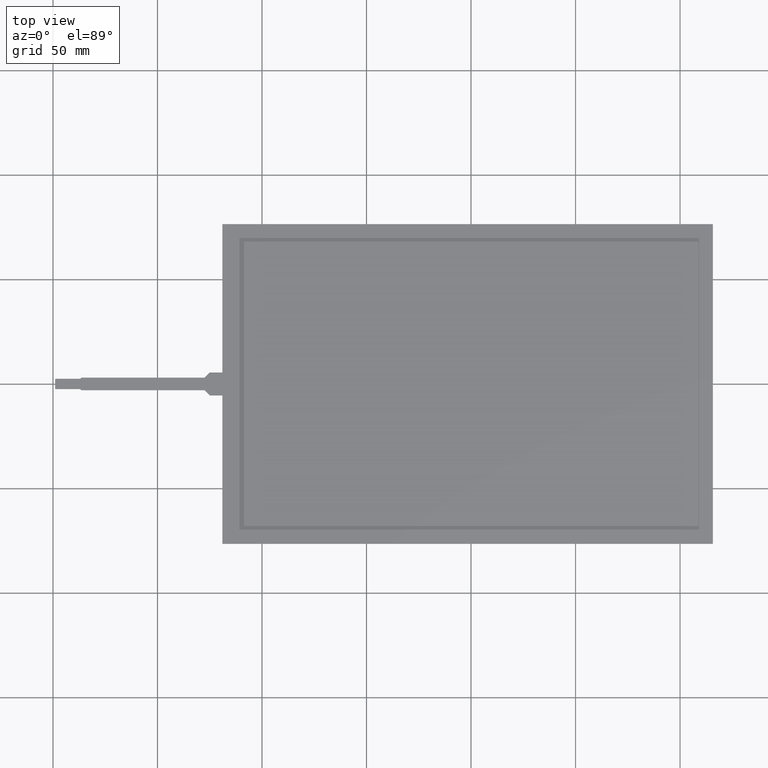
[diagram: clean part render]
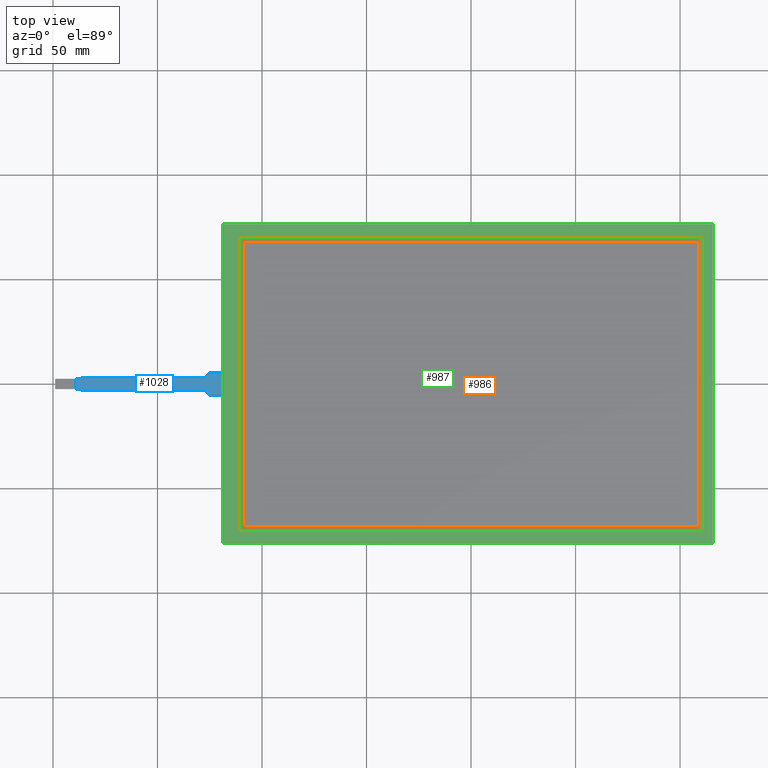
[diagram: same view with three faces highlighted in distinct colors, each labeled with its STEP entity id]
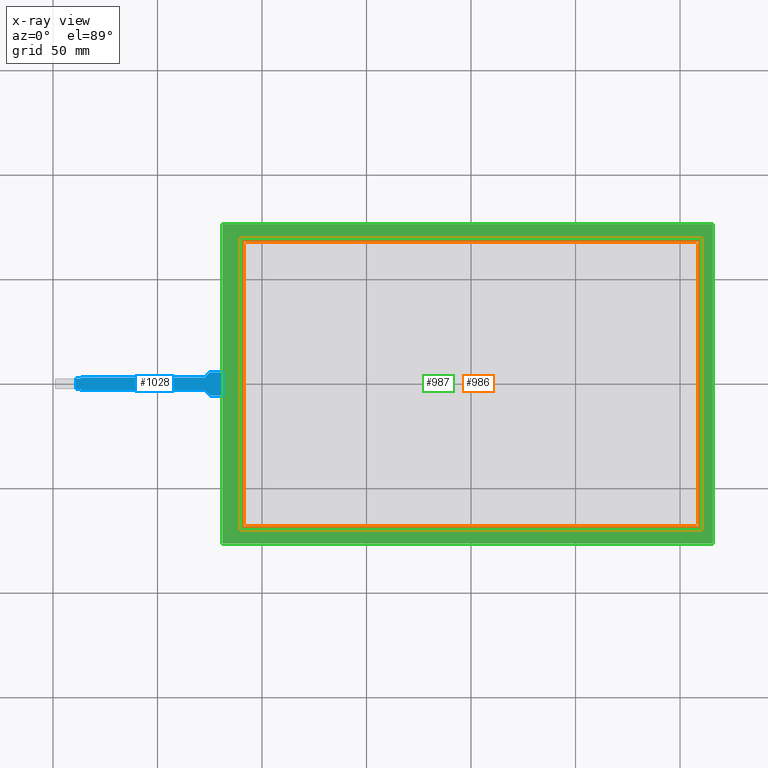
[diagram: x-ray of the same camera — body ghosted, the three highlighted faces saturated]
A machine part, top view with three faces highlighted in distinct colors.
The next image is the same camera in x-ray (body ghosted, the three faces saturated) — at least one of them is partly hidden behind the body in this view.
Their STEP definitions:

[orange] entity #986 — the highlighted planar face has unit normal (0, 0, -1).
#66=FACE_BOUND('',#129,.T.);
#76=FACE_OUTER_BOUND('',#128,.T.);
#128=EDGE_LOOP('',(#688,#689,#690,#691));
#129=EDGE_LOOP('',(#692,#693,#694,#695));
#176=LINE('',#1379,#302);
#180=LINE('',#1386,#306);
#183=LINE('',#1392,#309);
#185=LINE('',#1395,#311);
#188=LINE('',#1403,#314);
#192=LINE('',#1410,#318);
#195=LINE('',#1416,#321);
#197=LINE('',#1419,#323);
#302=VECTOR('',#1121,10.);
#306=VECTOR('',#1127,10.);
#309=VECTOR('',#1132,10.);
#311=VECTOR('',#1136,10.);
#314=VECTOR('',#1141,10.);
#318=VECTOR('',#1147,10.);
#321=VECTOR('',#1152,10.);
#323=VECTOR('',#1156,10.);
#428=VERTEX_POINT('',#1376);
#429=VERTEX_POINT('',#1378);
#431=VERTEX_POINT('',#1384);
#433=VERTEX_POINT('',#1390);
#436=VERTEX_POINT('',#1400);
#437=VERTEX_POINT('',#1402);
#439=VERTEX_POINT('',#1408);
#441=VERTEX_POINT('',#1414);
#520=EDGE_CURVE('',#428,#429,#176,.T.);
#524=EDGE_CURVE('',#431,#428,#180,.T.);
#527=EDGE_CURVE('',#433,#431,#183,.T.);
#529=EDGE_CURVE('',#429,#433,#185,.T.);
#532=EDGE_CURVE('',#436,#437,#188,.T.);
#536=EDGE_CURVE('',#439,#436,#192,.T.);
#539=EDGE_CURVE('',#441,#439,#195,.T.);
#541=EDGE_CURVE('',#437,#441,#197,.T.);
#688=ORIENTED_EDGE('',*,*,#541,.F.);
#689=ORIENTED_EDGE('',*,*,#532,.F.);
#690=ORIENTED_EDGE('',*,*,#536,.F.);
#691=ORIENTED_EDGE('',*,*,#539,.F.);
#692=ORIENTED_EDGE('',*,*,#529,.F.);
#693=ORIENTED_EDGE('',*,*,#520,.F.);
#694=ORIENTED_EDGE('',*,*,#524,.F.);
#695=ORIENTED_EDGE('',*,*,#527,.F.);
#940=PLANE('',#1059);
#986=ADVANCED_FACE('',(#76,#66),#940,.F.);
#1059=AXIS2_PLACEMENT_3D('',#1420,#1157,#1158);
#1121=DIRECTION('',(1.,0.,0.));
#1127=DIRECTION('',(0.,-1.,0.));
#1132=DIRECTION('',(-1.,0.,0.));
#1136=DIRECTION('',(0.,1.,0.));
#1141=DIRECTION('',(-2.53584131249144E-16,1.,0.));
#1147=DIRECTION('',(-1.,-1.20316773191564E-16,0.));
#1152=DIRECTION('',(0.,-1.,0.));
#1156=DIRECTION('',(1.,0.,0.));
#1157=DIRECTION('center_axis',(0.,0.,-1.));
#1158=DIRECTION('ref_axis',(-1.,0.,0.));
#1376=CARTESIAN_POINT('',(-108.73,-68.05,-0.1));
#1378=CARTESIAN_POINT('',(108.73,-68.05,-0.1));
#1379=CARTESIAN_POINT('',(108.73,-68.05,-0.1));
#1384=CARTESIAN_POINT('',(-108.73,68.05,-0.1));
#1386=CARTESIAN_POINT('',(-108.73,-68.05,-0.1));
#1390=CARTESIAN_POINT('',(108.73,68.05,-0.1));
#1392=CARTESIAN_POINT('',(-108.73,68.05,-0.1));
#1395=CARTESIAN_POINT('',(108.73,68.05,-0.1));
#1400=CARTESIAN_POINT('',(-110.73,-70.05,-0.1));
#1402=CARTESIAN_POINT('',(-110.73,70.05,-0.1));
#1403=CARTESIAN_POINT('',(-110.73,70.05,-0.1));
#1408=CARTESIAN_POINT('',(110.73,-70.05,-0.1));
#1410=CARTESIAN_POINT('',(-110.73,-70.05,-0.1));
#1414=CARTESIAN_POINT('',(110.73,70.05,-0.1));
#1416=CARTESIAN_POINT('',(110.73,-70.05,-0.1));
#1419=CARTESIAN_POINT('',(110.73,70.05,-0.1));
#1420=CARTESIAN_POINT('Origin',(0.,0.,-0.1));

[blue] entity #1028 — the highlighted planar face has unit normal (0, 0, 1).
#118=FACE_OUTER_BOUND('',#172,.T.);
#172=EDGE_LOOP('',(#908,#909,#910,#911,#912,#913,#914,#915,#916,#917,#918,
#919));
#264=LINE('',#1583,#390);
#267=LINE('',#1589,#393);
#271=LINE('',#1598,#397);
#275=LINE('',#1606,#401);
#278=LINE('',#1612,#404);
#281=LINE('',#1618,#407);
#284=LINE('',#1624,#410);
#287=LINE('',#1629,#413);
#289=LINE('',#1633,#415);
#292=LINE('',#1639,#418);
#295=LINE('',#1645,#421);
#298=LINE('',#1650,#424);
#390=VECTOR('',#1307,10.);
#393=VECTOR('',#1312,10.);
#397=VECTOR('',#1320,10.);
#401=VECTOR('',#1326,10.);
#404=VECTOR('',#1331,10.);
#407=VECTOR('',#1336,10.);
#410=VECTOR('',#1341,10.);
#413=VECTOR('',#1346,10.);
#415=VECTOR('',#1350,10.);
#418=VECTOR('',#1355,10.);
#421=VECTOR('',#1360,10.);
#424=VECTOR('',#1365,10.);
#495=VERTEX_POINT('',#1580);
#496=VERTEX_POINT('',#1582);
#498=VERTEX_POINT('',#1588);
#500=VERTEX_POINT('',#1596);
#501=VERTEX_POINT('',#1597);
#504=VERTEX_POINT('',#1605);
#506=VERTEX_POINT('',#1611);
#508=VERTEX_POINT('',#1617);
#510=VERTEX_POINT('',#1623);
#512=VERTEX_POINT('',#1632);
#514=VERTEX_POINT('',#1638);
#516=VERTEX_POINT('',#1644);
#620=EDGE_CURVE('',#496,#495,#264,.T.);
#623=EDGE_CURVE('',#498,#496,#267,.T.);
#627=EDGE_CURVE('',#500,#501,#271,.T.);
#631=EDGE_CURVE('',#501,#504,#275,.T.);
#634=EDGE_CURVE('',#504,#506,#278,.T.);
#637=EDGE_CURVE('',#506,#508,#281,.T.);
#640=EDGE_CURVE('',#508,#510,#284,.T.);
#643=EDGE_CURVE('',#510,#498,#287,.T.);
#645=EDGE_CURVE('',#495,#512,#289,.T.);
#648=EDGE_CURVE('',#512,#514,#292,.T.);
#651=EDGE_CURVE('',#514,#516,#295,.T.);
#654=EDGE_CURVE('',#516,#500,#298,.T.);
#908=ORIENTED_EDGE('',*,*,#623,.T.);
#909=ORIENTED_EDGE('',*,*,#620,.T.);
#910=ORIENTED_EDGE('',*,*,#645,.T.);
#911=ORIENTED_EDGE('',*,*,#648,.T.);
#912=ORIENTED_EDGE('',*,*,#651,.T.);
#913=ORIENTED_EDGE('',*,*,#654,.T.);
#914=ORIENTED_EDGE('',*,*,#627,.T.);
#915=ORIENTED_EDGE('',*,*,#631,.T.);
#916=ORIENTED_EDGE('',*,*,#634,.T.);
#917=ORIENTED_EDGE('',*,*,#637,.T.);
#918=ORIENTED_EDGE('',*,*,#640,.T.);
#919=ORIENTED_EDGE('',*,*,#643,.T.);
#976=PLANE('',#1113);
#1028=ADVANCED_FACE('',(#118),#976,.T.);
#1113=AXIS2_PLACEMENT_3D('',#1652,#1367,#1368);
#1307=DIRECTION('',(1.,3.70074341541719E-16,0.));
#1312=DIRECTION('',(0.,-1.,0.));
#1320=DIRECTION('',(0.,1.,0.));
#1326=DIRECTION('',(-1.,-7.40148683083438E-16,0.));
#1331=DIRECTION('',(-0.70710678118655,-0.707106781186545,0.));
#1336=DIRECTION('',(-1.,-7.52693576017055E-17,0.));
#1341=DIRECTION('',(-0.707106781186552,-0.707106781186543,0.));
#1346=DIRECTION('',(-1.,-5.55111512312579E-16,0.));
#1350=DIRECTION('',(0.707106781186527,-0.707106781186568,0.));
#1355=DIRECTION('',(1.,3.76346788008528E-16,0.));
#1360=DIRECTION('',(0.707106781186551,-0.707106781186544,0.));
#1365=DIRECTION('',(1.,3.70074341541719E-16,0.));
#1367=DIRECTION('center_axis',(0.,0.,1.));
#1368=DIRECTION('ref_axis',(1.,0.,0.));
#1580=CARTESIAN_POINT('',(-186.99,-2.49000000000001,0.2));
#1582=CARTESIAN_POINT('',(-188.99,-2.49000000000001,0.2));
#1583=CARTESIAN_POINT('',(-198.99,-2.49000000000001,0.2));
#1588=CARTESIAN_POINT('',(-188.99,2.51,0.2));
#1589=CARTESIAN_POINT('',(-188.99,-1.24,0.2));
#1596=CARTESIAN_POINT('',(-118.99,-5.48999999999999,0.2));
#1597=CARTESIAN_POINT('',(-118.99,5.51000000000001,0.2));
#1598=CARTESIAN_POINT('',(-118.99,-5.48999999999999,0.2));
#1605=CARTESIAN_POINT('',(-124.99,5.51,0.2));
#1606=CARTESIAN_POINT('',(-118.99,5.51000000000001,0.2));
#1611=CARTESIAN_POINT('',(-127.49,3.01,0.2));
#1612=CARTESIAN_POINT('',(-124.99,5.51,0.2));
#1617=CARTESIAN_POINT('',(-186.49,3.01,0.2));
#1618=CARTESIAN_POINT('',(-127.49,3.01,0.2));
#1623=CARTESIAN_POINT('',(-186.99,2.51,0.2));
#1624=CARTESIAN_POINT('',(-186.49,3.01,0.2));
#1629=CARTESIAN_POINT('',(-186.99,2.51,0.2));
#1632=CARTESIAN_POINT('',(-186.49,-2.99000000000001,0.2));
#1633=CARTESIAN_POINT('',(-186.99,-2.49000000000001,0.2));
#1638=CARTESIAN_POINT('',(-127.49,-2.98999999999998,0.2));
#1639=CARTESIAN_POINT('',(-186.49,-2.99000000000001,0.2));
#1644=CARTESIAN_POINT('',(-124.99,-5.48999999999999,0.2));
#1645=CARTESIAN_POINT('',(-127.49,-2.98999999999998,0.2));
#1650=CARTESIAN_POINT('',(-124.99,-5.48999999999999,0.2));
#1652=CARTESIAN_POINT('Origin',(-158.99,0.0100000000000078,0.2));

[green] entity #987 — the highlighted planar face has unit normal (0, 0, 1).
#67=FACE_BOUND('',#131,.T.);
#77=FACE_OUTER_BOUND('',#130,.T.);
#130=EDGE_LOOP('',(#696,#697,#698,#699));
#131=EDGE_LOOP('',(#700,#701,#702,#703));
#186=LINE('',#1399,#312);
#190=LINE('',#1407,#316);
#193=LINE('',#1413,#319);
#196=LINE('',#1418,#322);
#198=LINE('',#1424,#324);
#199=LINE('',#1426,#325);
#200=LINE('',#1428,#326);
#201=LINE('',#1429,#327);
#312=VECTOR('',#1139,10.);
#316=VECTOR('',#1145,10.);
#319=VECTOR('',#1150,10.);
#322=VECTOR('',#1155,10.);
#324=VECTOR('',#1161,10.);
#325=VECTOR('',#1162,10.);
#326=VECTOR('',#1163,10.);
#327=VECTOR('',#1164,10.);
#434=VERTEX_POINT('',#1397);
#435=VERTEX_POINT('',#1398);
#438=VERTEX_POINT('',#1406);
#440=VERTEX_POINT('',#1412);
#442=VERTEX_POINT('',#1422);
#443=VERTEX_POINT('',#1423);
#444=VERTEX_POINT('',#1425);
#445=VERTEX_POINT('',#1427);
#530=EDGE_CURVE('',#434,#435,#186,.T.);
#534=EDGE_CURVE('',#438,#434,#190,.T.);
#537=EDGE_CURVE('',#440,#438,#193,.T.);
#540=EDGE_CURVE('',#435,#440,#196,.T.);
#542=EDGE_CURVE('',#442,#443,#198,.T.);
#543=EDGE_CURVE('',#443,#444,#199,.T.);
#544=EDGE_CURVE('',#444,#445,#200,.T.);
#545=EDGE_CURVE('',#445,#442,#201,.T.);
#696=ORIENTED_EDGE('',*,*,#542,.T.);
#697=ORIENTED_EDGE('',*,*,#543,.T.);
#698=ORIENTED_EDGE('',*,*,#544,.T.);
#699=ORIENTED_EDGE('',*,*,#545,.T.);
#700=ORIENTED_EDGE('',*,*,#530,.T.);
#701=ORIENTED_EDGE('',*,*,#540,.T.);
#702=ORIENTED_EDGE('',*,*,#537,.T.);
#703=ORIENTED_EDGE('',*,*,#534,.T.);
#941=PLANE('',#1060);
#987=ADVANCED_FACE('',(#77,#67),#941,.T.);
#1060=AXIS2_PLACEMENT_3D('',#1421,#1159,#1160);
#1139=DIRECTION('',(-2.53584131249144E-16,1.,0.));
#1145=DIRECTION('',(-1.,-1.20316773191564E-16,0.));
#1150=DIRECTION('',(0.,-1.,0.));
#1155=DIRECTION('',(1.,0.,0.));
#1159=DIRECTION('center_axis',(0.,0.,1.));
#1160=DIRECTION('ref_axis',(1.,0.,0.));
#1161=DIRECTION('',(-1.,0.,0.));
#1162=DIRECTION('',(2.32203508418333E-16,-1.,0.));
#1163=DIRECTION('',(1.,1.13529410272705E-16,0.));
#1164=DIRECTION('',(-1.16101754209167E-16,1.,0.));
#1397=CARTESIAN_POINT('',(-110.73,-70.05,0.));
#1398=CARTESIAN_POINT('',(-110.73,70.05,0.));
#1399=CARTESIAN_POINT('',(-110.73,-35.025,0.));
#1406=CARTESIAN_POINT('',(110.73,-70.05,0.));
#1407=CARTESIAN_POINT('',(54.545,-70.05,0.));
#1412=CARTESIAN_POINT('',(110.73,70.05,0.));
#1413=CARTESIAN_POINT('',(110.73,35.025,0.));
#1418=CARTESIAN_POINT('',(-56.185,70.05,0.));
#1421=CARTESIAN_POINT('Origin',(-1.64000000000001,0.,0.));
#1422=CARTESIAN_POINT('',(115.71,76.5,0.));
#1423=CARTESIAN_POINT('',(-118.99,76.5,0.));
#1424=CARTESIAN_POINT('',(115.71,76.5,0.));
#1425=CARTESIAN_POINT('',(-118.99,-76.5,0.));
#1426=CARTESIAN_POINT('',(-118.99,76.5,0.));
#1427=CARTESIAN_POINT('',(115.71,-76.5,0.));
#1428=CARTESIAN_POINT('',(-118.99,-76.5,0.));
#1429=CARTESIAN_POINT('',(115.71,-76.5,0.));